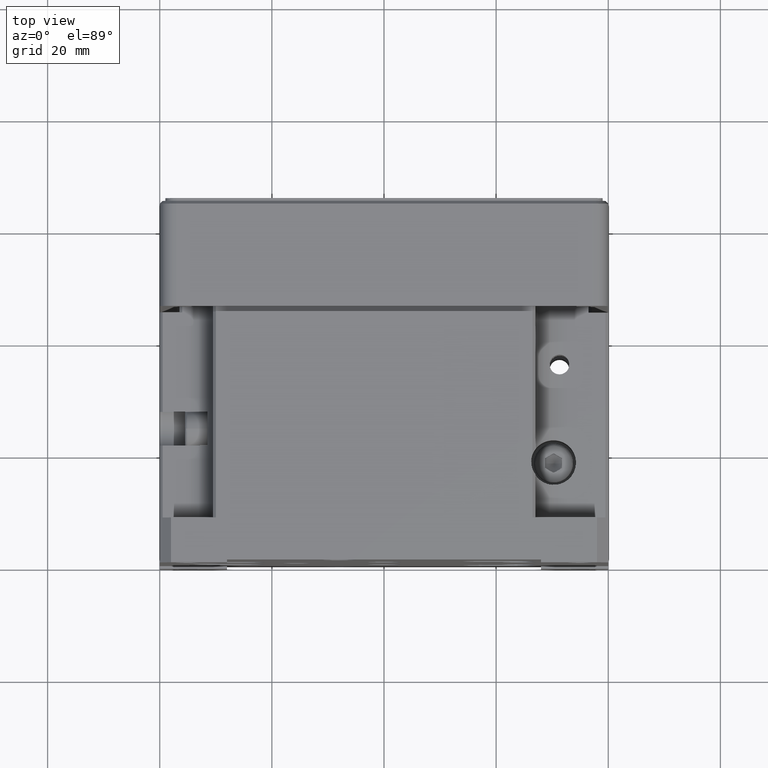
[diagram: clean part render]
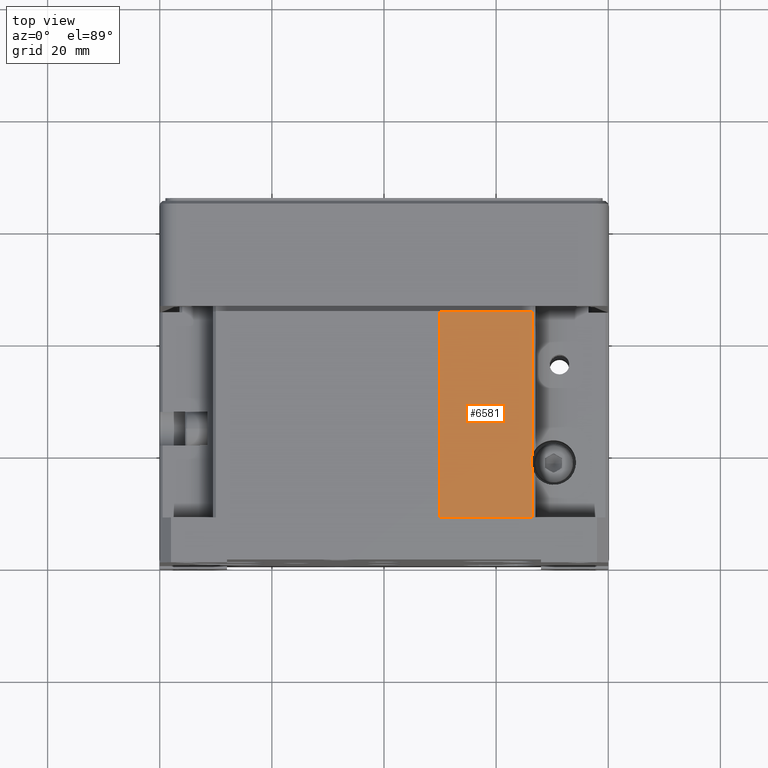
[diagram: same view with one face highlighted and labeled with its STEP entity id]
A machine part, top view. The second image highlights one B-rep face of the part: STEP entity #6581.
In plain terms, the highlighted planar face has unit normal (0, 0, -1).
Its self-contained STEP definition (entity closure, byte-faithful):
#596 = EDGE_CURVE ( 'NONE', #21450, #12139, #3067, .T. ) ;
#1252 = EDGE_LOOP ( 'NONE', ( #14224, #12682, #8375, #34944, #25110, #26966, #10232 ) ) ;
#1262 = CARTESIAN_POINT ( 'NONE',  ( 30.25000000000000000, 18.00000000000001066, 39.99999999999999289 ) ) ;
#1720 = LINE ( 'NONE', #7363, #27077 ) ;
#1816 = DIRECTION ( 'NONE',  ( 0.000000000000000000, 0.000000000000000000, -1.000000000000000000 ) ) ;
#1865 = AXIS2_PLACEMENT_3D ( 'NONE', #17963, #35392, #23589 ) ;
#1911 = DIRECTION ( 'NONE',  ( -0.000000000000000000, -1.000000000000000000, -0.000000000000000000 ) ) ;
#2298 = VECTOR ( 'NONE', #30797, 1000.000000000000000 ) ;
#2571 = DIRECTION ( 'NONE',  ( 0.000000000000000000, 0.000000000000000000, -1.000000000000000000 ) ) ;
#3067 = CIRCLE ( 'NONE', #1865, 3.999999999999989786 ) ;
#3661 = VERTEX_POINT ( 'NONE', #23385 ) ;
#3883 = DIRECTION ( 'NONE',  ( 1.000000000000000000, 3.469446951953622866E-15, 0.000000000000000000 ) ) ;
#3919 = VERTEX_POINT ( 'NONE', #19593 ) ;
#5580 = CARTESIAN_POINT ( 'NONE',  ( 10.00000000000001954, 149.0617922072698889, 39.99999999999999289 ) ) ;
#5816 = DIRECTION ( 'NONE',  ( -0.000000000000000000, -1.000000000000000000, -0.000000000000000000 ) ) ;
#6581 = ADVANCED_FACE ( 'NONE', ( #25872 ), #25685, .F. ) ;
#7363 = CARTESIAN_POINT ( 'NONE',  ( 26.50000000000004263, 149.0617922072698889, 39.99999999999999289 ) ) ;
#8068 = CARTESIAN_POINT ( 'NONE',  ( 26.50000000000004263, 44.75000000000001421, 39.99999999999999289 ) ) ;
#8375 = ORIENTED_EDGE ( 'NONE', *, *, #9997, .F. ) ;
#9685 = CARTESIAN_POINT ( 'NONE',  ( 10.00000000000001954, 44.75000000000001421, 39.99999999999999289 ) ) ;
#9997 = EDGE_CURVE ( 'NONE', #35437, #10771, #1720, .T. ) ;
#10232 = ORIENTED_EDGE ( 'NONE', *, *, #16142, .F. ) ;
#10771 = VERTEX_POINT ( 'NONE', #22044 ) ;
#11272 = CARTESIAN_POINT ( 'NONE',  ( 26.50000000000004263, 149.0617922072698889, 39.99999999999999289 ) ) ;
#11359 = DIRECTION ( 'NONE',  ( -0.000000000000000000, -1.000000000000000000, -0.000000000000000000 ) ) ;
#12139 = VERTEX_POINT ( 'NONE', #27941 ) ;
#12682 = ORIENTED_EDGE ( 'NONE', *, *, #21148, .T. ) ;
#13947 = AXIS2_PLACEMENT_3D ( 'NONE', #5580, #2571, #34671 ) ;
#14224 = ORIENTED_EDGE ( 'NONE', *, *, #596, .T. ) ;
#14891 = CARTESIAN_POINT ( 'NONE',  ( 10.00000000000001954, 44.75000000000001421, 39.99999999999999289 ) ) ;
#16142 = EDGE_CURVE ( 'NONE', #21450, #3919, #20080, .T. ) ;
#16345 = LINE ( 'NONE', #33598, #2298 ) ;
#17871 = VERTEX_POINT ( 'NONE', #14891 ) ;
#17963 = CARTESIAN_POINT ( 'NONE',  ( 30.25000000000000000, 18.00000000000001066, 39.99999999999999289 ) ) ;
#19435 = CARTESIAN_POINT ( 'NONE',  ( 10.00000000000001954, 149.0617922072698889, 39.99999999999999289 ) ) ;
#19593 = CARTESIAN_POINT ( 'NONE',  ( 26.50000000000004263, 7.999999999999967137, 39.99999999999999289 ) ) ;
#19897 = EDGE_CURVE ( 'NONE', #3919, #3661, #16345, .T. ) ;
#20080 = LINE ( 'NONE', #11272, #35679 ) ;
#21148 = EDGE_CURVE ( 'NONE', #12139, #10771, #24590, .T. ) ;
#21450 = VERTEX_POINT ( 'NONE', #24416 ) ;
#22044 = CARTESIAN_POINT ( 'NONE',  ( 26.50000000000004263, 19.39194109070761840, 39.99999999999999289 ) ) ;
#23385 = CARTESIAN_POINT ( 'NONE',  ( 10.00000000000001954, 7.999999999999991118, 39.99999999999999289 ) ) ;
#23589 = DIRECTION ( 'NONE',  ( 1.000000000000000000, 0.000000000000000000, 0.000000000000000000 ) ) ;
#24416 = CARTESIAN_POINT ( 'NONE',  ( 26.50000000000004263, 16.60805890929243489, 39.99999999999999289 ) ) ;
#24590 = CIRCLE ( 'NONE', #26988, 3.999999999999989786 ) ;
#25110 = ORIENTED_EDGE ( 'NONE', *, *, #33278, .T. ) ;
#25685 = PLANE ( 'NONE',  #13947 ) ;
#25872 = FACE_OUTER_BOUND ( 'NONE', #1252, .T. ) ;
#26423 = LINE ( 'NONE', #9685, #27872 ) ;
#26966 = ORIENTED_EDGE ( 'NONE', *, *, #19897, .F. ) ;
#26988 = AXIS2_PLACEMENT_3D ( 'NONE', #1262, #1816, #3883 ) ;
#27077 = VECTOR ( 'NONE', #1911, 1000.000000000000000 ) ;
#27872 = VECTOR ( 'NONE', #35407, 1000.000000000000000 ) ;
#27941 = CARTESIAN_POINT ( 'NONE',  ( 26.25000000000001066, 18.00000000000001066, 39.99999999999999289 ) ) ;
#29121 = VECTOR ( 'NONE', #11359, 1000.000000000000000 ) ;
#30797 = DIRECTION ( 'NONE',  ( -1.000000000000000000, -0.000000000000000000, -0.000000000000000000 ) ) ;
#33278 = EDGE_CURVE ( 'NONE', #17871, #3661, #36522, .T. ) ;
#33598 = CARTESIAN_POINT ( 'NONE',  ( 0.000000000000000000, 8.000000000000000000, 39.99999999999999289 ) ) ;
#34296 = EDGE_CURVE ( 'NONE', #17871, #35437, #26423, .T. ) ;
#34671 = DIRECTION ( 'NONE',  ( -1.000000000000000000, 0.000000000000000000, -0.000000000000000000 ) ) ;
#34944 = ORIENTED_EDGE ( 'NONE', *, *, #34296, .F. ) ;
#35392 = DIRECTION ( 'NONE',  ( 0.000000000000000000, 0.000000000000000000, -1.000000000000000000 ) ) ;
#35407 = DIRECTION ( 'NONE',  ( 1.000000000000000000, -0.000000000000000000, 0.000000000000000000 ) ) ;
#35437 = VERTEX_POINT ( 'NONE', #8068 ) ;
#35679 = VECTOR ( 'NONE', #5816, 1000.000000000000000 ) ;
#36522 = LINE ( 'NONE', #19435, #29121 ) ;